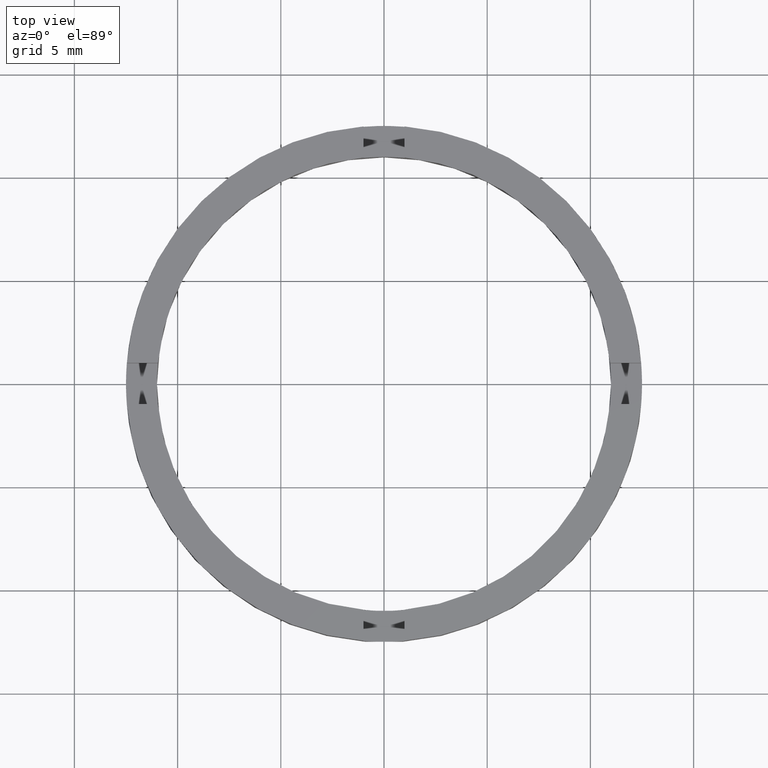
[diagram: clean part render]
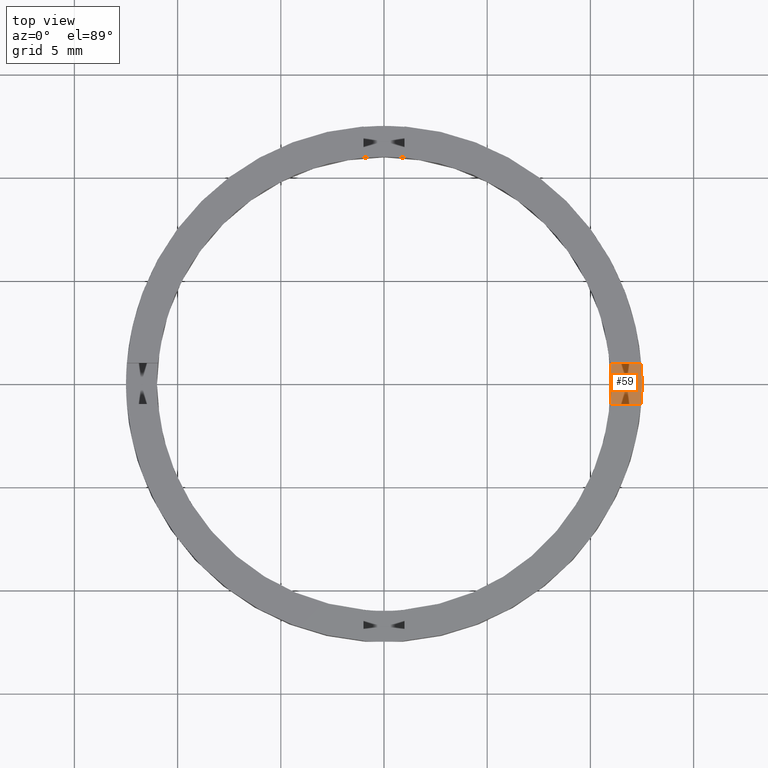
[diagram: same view with one face highlighted and labeled with its STEP entity id]
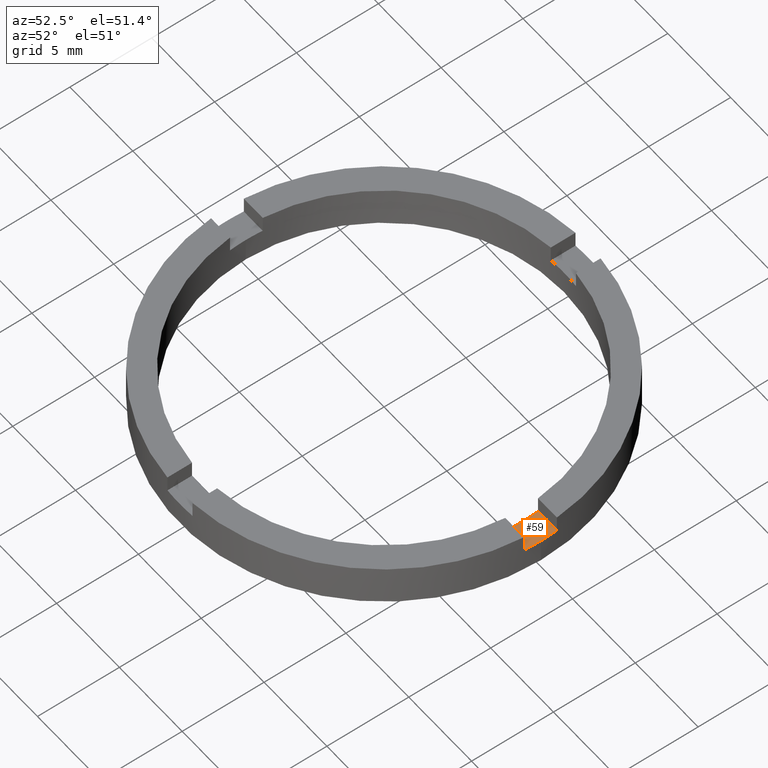
[diagram: same view with one face highlighted and labeled with its STEP entity id]
A machine part, top view. The second image highlights one B-rep face of the part: STEP entity #59.
A second angle (auxiliary view) of the same face is appended — the face is thin or edge-on in the first view.
In plain terms, the highlighted planar face has unit normal (0, 0, 1).
Its self-contained STEP definition (entity closure, byte-faithful):
#30 = CARTESIAN_POINT ( 'NONE',  ( 0.000000000000000000, 0.000000000000000000, 1.500000000000000000 ) ) ;
#31 = VECTOR ( 'NONE', #123, 1000.000000000000000 ) ;
#38 = VECTOR ( 'NONE', #308, 1000.000000000000000 ) ;
#59 = ADVANCED_FACE ( 'NONE', ( #430 ), #99, .T. ) ;
#73 = DIRECTION ( 'NONE',  ( 1.000000000000000000, 0.000000000000000000, 0.000000000000000000 ) ) ;
#85 = EDGE_CURVE ( 'NONE', #699, #496, #657, .T. ) ;
#90 = AXIS2_PLACEMENT_3D ( 'NONE', #193, #343, #271 ) ;
#94 = CARTESIAN_POINT ( 'NONE',  ( 12.45993579437712739, 0.9999999999998402389, 1.500000000000000000 ) ) ;
#99 = PLANE ( 'NONE',  #90 ) ;
#123 = DIRECTION ( 'NONE',  ( 1.000000000000000000, 4.336808689942018352E-17, 0.000000000000000000 ) ) ;
#146 = CARTESIAN_POINT ( 'NONE',  ( 12.50000000000000000, 1.530808498934191521E-15, 1.500000000000000000 ) ) ;
#160 = VERTEX_POINT ( 'NONE', #146 ) ;
#167 = ORIENTED_EDGE ( 'NONE', *, *, #701, .T. ) ;
#169 = CARTESIAN_POINT ( 'NONE',  ( 0.000000000000000000, 0.000000000000000000, 1.500000000000000000 ) ) ;
#193 = CARTESIAN_POINT ( 'NONE',  ( 0.000000000000000000, 0.000000000000000000, 1.500000000000000000 ) ) ;
#203 = ORIENTED_EDGE ( 'NONE', *, *, #85, .F. ) ;
#207 = ORIENTED_EDGE ( 'NONE', *, *, #307, .T. ) ;
#228 = VERTEX_POINT ( 'NONE', #556 ) ;
#260 = CARTESIAN_POINT ( 'NONE',  ( 10.95445115010330639, -1.000000000000159872, 1.500000000000000000 ) ) ;
#271 = DIRECTION ( 'NONE',  ( 1.000000000000000000, 0.000000000000000000, -0.000000000000000000 ) ) ;
#279 = LINE ( 'NONE', #508, #31 ) ;
#307 = EDGE_CURVE ( 'NONE', #160, #768, #388, .T. ) ;
#308 = DIRECTION ( 'NONE',  ( -1.000000000000000000, -4.336808689942018352E-17, -0.000000000000000000 ) ) ;
#325 = EDGE_CURVE ( 'NONE', #228, #160, #664, .T. ) ;
#343 = DIRECTION ( 'NONE',  ( 0.000000000000000000, 0.000000000000000000, 1.000000000000000000 ) ) ;
#351 = EDGE_LOOP ( 'NONE', ( #670, #207, #167, #682, #203, #460 ) ) ;
#358 = CIRCLE ( 'NONE', #655, 11.00000000000000000 ) ;
#388 = CIRCLE ( 'NONE', #572, 12.50000000000000000 ) ;
#430 = FACE_OUTER_BOUND ( 'NONE', #351, .T. ) ;
#431 = AXIS2_PLACEMENT_3D ( 'NONE', #30, #586, #73 ) ;
#460 = ORIENTED_EDGE ( 'NONE', *, *, #724, .T. ) ;
#471 = DIRECTION ( 'NONE',  ( 1.000000000000000000, 0.000000000000000000, 0.000000000000000000 ) ) ;
#486 = EDGE_CURVE ( 'NONE', #496, #771, #358, .T. ) ;
#496 = VERTEX_POINT ( 'NONE', #534 ) ;
#508 = CARTESIAN_POINT ( 'NONE',  ( 2.499999999999998668, -1.000000000000160316, 1.500000000000000000 ) ) ;
#513 = DIRECTION ( 'NONE',  ( 1.000000000000000000, 0.000000000000000000, 0.000000000000000000 ) ) ;
#526 = DIRECTION ( 'NONE',  ( 0.000000000000000000, 0.000000000000000000, 1.000000000000000000 ) ) ;
#534 = CARTESIAN_POINT ( 'NONE',  ( 11.00000000000000000, 1.347111479062088405E-15, 1.500000000000000000 ) ) ;
#556 = CARTESIAN_POINT ( 'NONE',  ( 12.45993579437710075, -1.000000000000159872, 1.500000000000000000 ) ) ;
#571 = LINE ( 'NONE', #600, #38 ) ;
#572 = AXIS2_PLACEMENT_3D ( 'NONE', #169, #692, #616 ) ;
#573 = CARTESIAN_POINT ( 'NONE',  ( 10.95445115010333659, 0.9999999999998402389, 1.500000000000000000 ) ) ;
#574 = AXIS2_PLACEMENT_3D ( 'NONE', #742, #526, #513 ) ;
#586 = DIRECTION ( 'NONE',  ( 0.000000000000000000, 0.000000000000000000, 1.000000000000000000 ) ) ;
#600 = CARTESIAN_POINT ( 'NONE',  ( 2.499999999999998668, 0.9999999999998397948, 1.500000000000000000 ) ) ;
#615 = CARTESIAN_POINT ( 'NONE',  ( 0.000000000000000000, 0.000000000000000000, 1.500000000000000000 ) ) ;
#616 = DIRECTION ( 'NONE',  ( 1.000000000000000000, 0.000000000000000000, 0.000000000000000000 ) ) ;
#619 = DIRECTION ( 'NONE',  ( 0.000000000000000000, 0.000000000000000000, 1.000000000000000000 ) ) ;
#655 = AXIS2_PLACEMENT_3D ( 'NONE', #615, #619, #471 ) ;
#657 = CIRCLE ( 'NONE', #574, 11.00000000000000000 ) ;
#664 = CIRCLE ( 'NONE', #431, 12.50000000000000000 ) ;
#670 = ORIENTED_EDGE ( 'NONE', *, *, #325, .T. ) ;
#682 = ORIENTED_EDGE ( 'NONE', *, *, #486, .F. ) ;
#692 = DIRECTION ( 'NONE',  ( 0.000000000000000000, 0.000000000000000000, 1.000000000000000000 ) ) ;
#699 = VERTEX_POINT ( 'NONE', #260 ) ;
#701 = EDGE_CURVE ( 'NONE', #768, #771, #571, .T. ) ;
#724 = EDGE_CURVE ( 'NONE', #699, #228, #279, .T. ) ;
#742 = CARTESIAN_POINT ( 'NONE',  ( 0.000000000000000000, 0.000000000000000000, 1.500000000000000000 ) ) ;
#768 = VERTEX_POINT ( 'NONE', #94 ) ;
#771 = VERTEX_POINT ( 'NONE', #573 ) ;